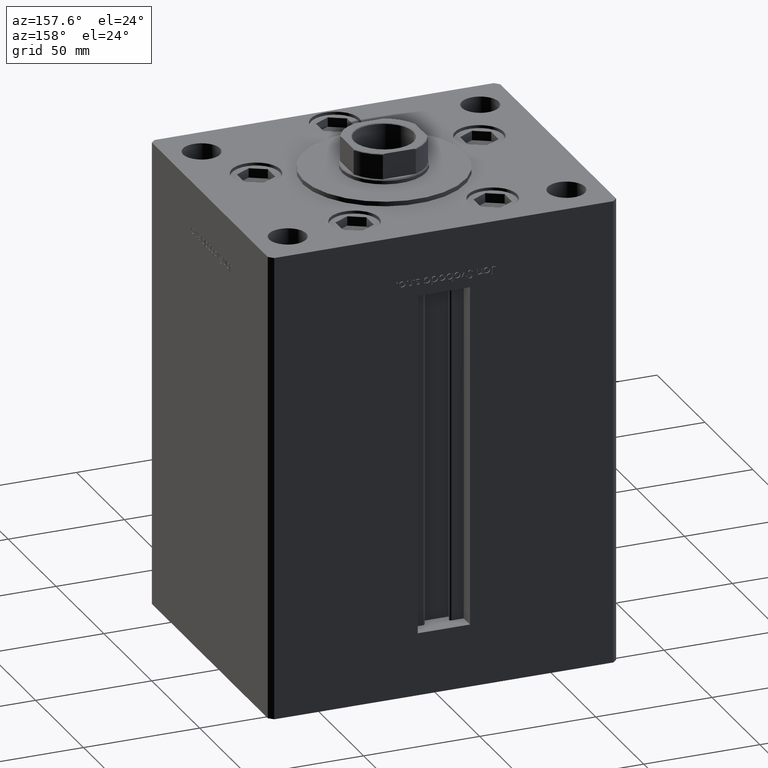
[diagram: clean part render]
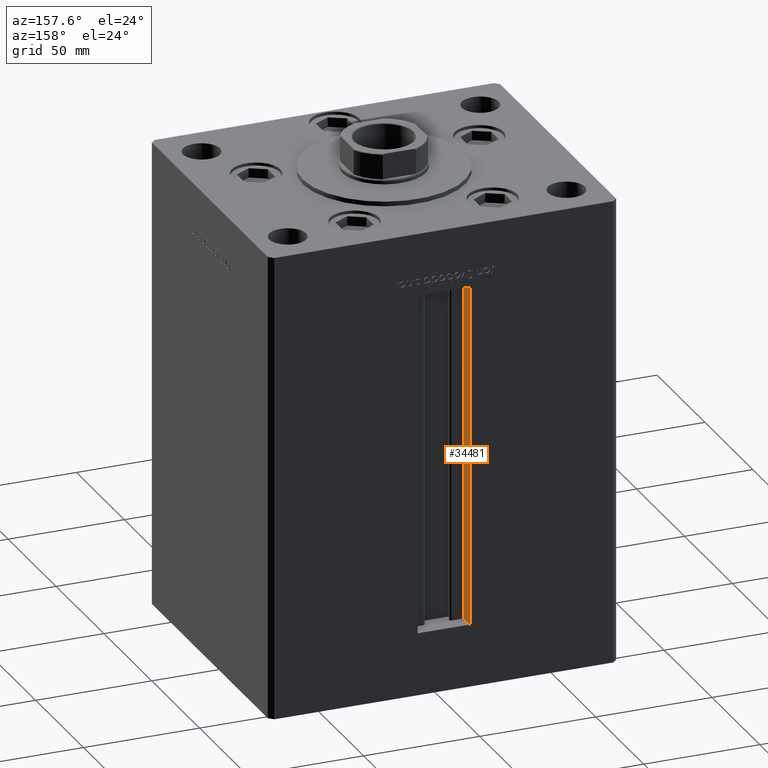
[diagram: same view with one face highlighted and labeled with its STEP entity id]
A machine part, auxiliary view. The second image highlights one B-rep face of the part: STEP entity #34481.
In plain terms, the highlighted planar face has unit normal (-1, 0, 0).
Its self-contained STEP definition (entity closure, byte-faithful):
#731 = DIRECTION ( 'NONE',  ( -0.000000000000000000, -1.000000000000000000, -0.000000000000000000 ) ) ;
#1654 = LINE ( 'NONE', #49362, #7817 ) ;
#1765 = VERTEX_POINT ( 'NONE', #32191 ) ;
#2160 = EDGE_CURVE ( 'NONE', #1765, #40888, #28952, .T. ) ;
#5774 = DIRECTION ( 'NONE',  ( -0.000000000000000000, -0.000000000000000000, 1.000000000000000000 ) ) ;
#6106 = VECTOR ( 'NONE', #25202, 1000.000000000000000 ) ;
#6114 = CARTESIAN_POINT ( 'NONE',  ( -11.25000000000000178, 62.49999999999999289, 147.0000000000000000 ) ) ;
#6487 = CARTESIAN_POINT ( 'NONE',  ( -11.25000000000000178, 55.99999999999999289, 0.000000000000000000 ) ) ;
#7817 = VECTOR ( 'NONE', #41716, 1000.000000000000000 ) ;
#9385 = ORIENTED_EDGE ( 'NONE', *, *, #41352, .F. ) ;
#9610 = VERTEX_POINT ( 'NONE', #6114 ) ;
#14702 = EDGE_CURVE ( 'NONE', #40888, #29711, #25809, .T. ) ;
#16061 = CARTESIAN_POINT ( 'NONE',  ( -11.25000000000000178, 55.99999999999999289, 0.000000000000000000 ) ) ;
#22385 = EDGE_LOOP ( 'NONE', ( #27090, #25586, #22959, #9385 ) ) ;
#22959 = ORIENTED_EDGE ( 'NONE', *, *, #38106, .T. ) ;
#25202 = DIRECTION ( 'NONE',  ( 0.000000000000000000, 1.000000000000000000, 0.000000000000000000 ) ) ;
#25586 = ORIENTED_EDGE ( 'NONE', *, *, #2160, .F. ) ;
#25809 = LINE ( 'NONE', #30558, #37595 ) ;
#27090 = ORIENTED_EDGE ( 'NONE', *, *, #14702, .F. ) ;
#28952 = LINE ( 'NONE', #36851, #48951 ) ;
#29711 = VERTEX_POINT ( 'NONE', #33152 ) ;
#30219 = FACE_OUTER_BOUND ( 'NONE', #22385, .T. ) ;
#30558 = CARTESIAN_POINT ( 'NONE',  ( -11.25000000000000178, 55.99999999999999289, 0.000000000000000000 ) ) ;
#32191 = CARTESIAN_POINT ( 'NONE',  ( -11.25000000000000178, 62.49999999999999289, 0.000000000000000000 ) ) ;
#33152 = CARTESIAN_POINT ( 'NONE',  ( -11.25000000000000178, 55.99999999999999289, 147.0000000000000000 ) ) ;
#34174 = DIRECTION ( 'NONE',  ( -1.000000000000000000, 0.000000000000000000, 0.000000000000000000 ) ) ;
#34481 = ADVANCED_FACE ( 'NONE', ( #30219 ), #37599, .F. ) ;
#36851 = CARTESIAN_POINT ( 'NONE',  ( -11.25000000000000178, 55.99999999999999289, 0.000000000000000000 ) ) ;
#37595 = VECTOR ( 'NONE', #5774, 1000.000000000000000 ) ;
#37599 = PLANE ( 'NONE',  #43042 ) ;
#38106 = EDGE_CURVE ( 'NONE', #1765, #9610, #1654, .T. ) ;
#40888 = VERTEX_POINT ( 'NONE', #16061 ) ;
#41352 = EDGE_CURVE ( 'NONE', #29711, #9610, #45490, .T. ) ;
#41716 = DIRECTION ( 'NONE',  ( -0.000000000000000000, -0.000000000000000000, 1.000000000000000000 ) ) ;
#43042 = AXIS2_PLACEMENT_3D ( 'NONE', #6487, #34174, #46030 ) ;
#45229 = CARTESIAN_POINT ( 'NONE',  ( -11.25000000000000178, 0.000000000000000000, 147.0000000000000000 ) ) ;
#45490 = LINE ( 'NONE', #45229, #6106 ) ;
#46030 = DIRECTION ( 'NONE',  ( 0.000000000000000000, 0.000000000000000000, 1.000000000000000000 ) ) ;
#48951 = VECTOR ( 'NONE', #731, 1000.000000000000000 ) ;
#49362 = CARTESIAN_POINT ( 'NONE',  ( -11.25000000000000178, 62.49999999999999289, 0.000000000000000000 ) ) ;